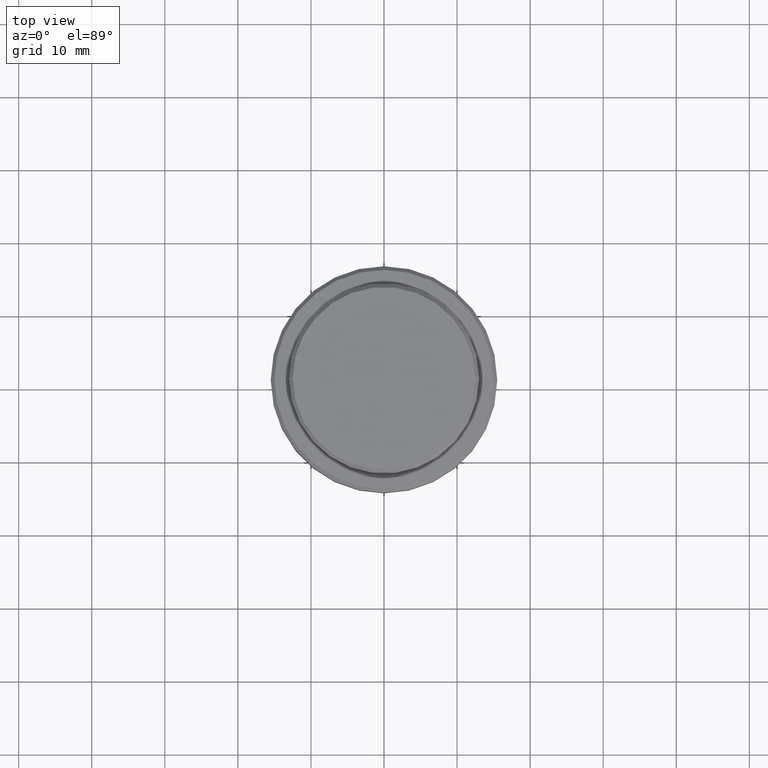
[diagram: clean part render]
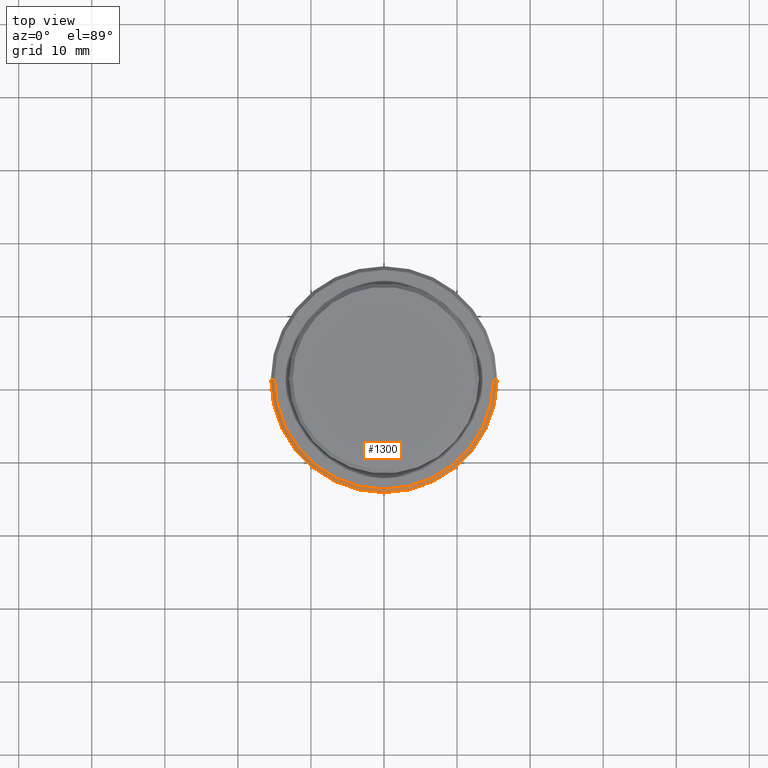
[diagram: same view with one face highlighted and labeled with its STEP entity id]
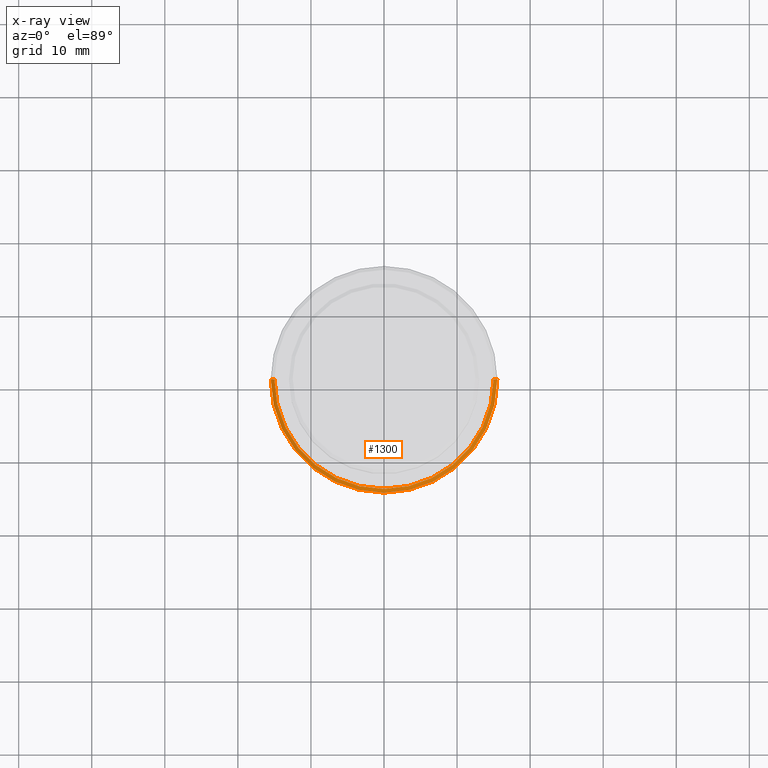
[diagram: x-ray of the same camera — body ghosted, the highlighted face saturated]
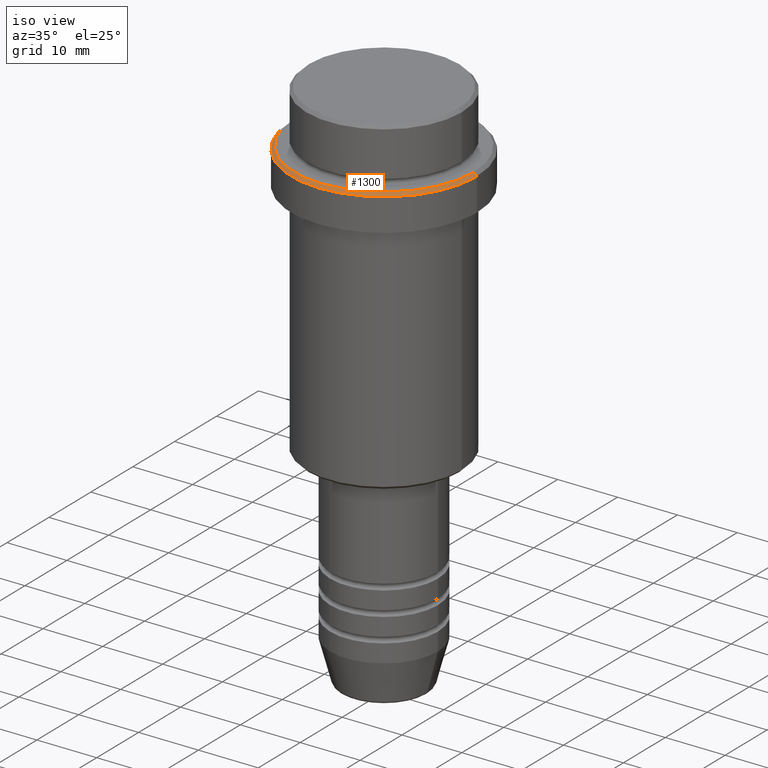
[diagram: same view with one face highlighted and labeled with its STEP entity id]
A machine part, top view. The second image highlights one B-rep face of the part: STEP entity #1300.
The next image is the same camera in x-ray: the body ghosted, the highlighted face saturated — about 0% of this face is hidden behind the body in this view.
A second angle (iso view) of the same face is appended — the face is thin or edge-on in the first view.
In plain terms, the highlighted conical surface has half-angle 45 deg.
Its self-contained STEP definition (entity closure, byte-faithful):
#76 = EDGE_CURVE ( 'NONE', #488, #563, #1321, .T. ) ;
#159 = LINE ( 'NONE', #588, #1234 ) ;
#161 = CIRCLE ( 'NONE', #1143, 15.50000000000000000 ) ;
#217 = ORIENTED_EDGE ( 'NONE', *, *, #985, .F. ) ;
#255 = CARTESIAN_POINT ( 'NONE',  ( -15.50000000000000000, 1.898202538678397557E-15, -9.500000000000012434 ) ) ;
#313 = DIRECTION ( 'NONE',  ( 1.000000000000000000, 0.000000000000000000, 0.000000000000000000 ) ) ;
#318 = AXIS2_PLACEMENT_3D ( 'NONE', #972, #1407, #313 ) ;
#357 = VERTEX_POINT ( 'NONE', #255 ) ;
#359 = DIRECTION ( 'NONE',  ( 0.000000000000000000, 0.000000000000000000, -1.000000000000000000 ) ) ;
#370 = DIRECTION ( 'NONE',  ( 0.7071067811865487940, 8.659560562354950115E-17, -0.7071067811865463515 ) ) ;
#376 = FACE_OUTER_BOUND ( 'NONE', #700, .T. ) ;
#436 = VECTOR ( 'NONE', #1230, 1000.000000000000000 ) ;
#452 = LINE ( 'NONE', #579, #436 ) ;
#461 = DIRECTION ( 'NONE',  ( -1.000000000000000000, 0.000000000000000000, 0.000000000000000000 ) ) ;
#488 = VERTEX_POINT ( 'NONE', #1060 ) ;
#563 = VERTEX_POINT ( 'NONE', #1213 ) ;
#579 = CARTESIAN_POINT ( 'NONE',  ( -14.99999999999998579, 0.000000000000000000, -9.000000000000000000 ) ) ;
#588 = CARTESIAN_POINT ( 'NONE',  ( 14.99999999999998579, 1.836970198721028011E-15, -9.000000000000000000 ) ) ;
#625 = DIRECTION ( 'NONE',  ( 1.000000000000000000, 0.000000000000000000, 0.000000000000000000 ) ) ;
#687 = VERTEX_POINT ( 'NONE', #918 ) ;
#689 = AXIS2_PLACEMENT_3D ( 'NONE', #1220, #359, #461 ) ;
#700 = EDGE_LOOP ( 'NONE', ( #818, #1291, #978, #217 ) ) ;
#745 = EDGE_CURVE ( 'NONE', #563, #687, #159, .T. ) ;
#818 = ORIENTED_EDGE ( 'NONE', *, *, #745, .F. ) ;
#918 = CARTESIAN_POINT ( 'NONE',  ( 15.50000000000000000, 0.000000000000000000, -9.500000000000012434 ) ) ;
#938 = CARTESIAN_POINT ( 'NONE',  ( 0.000000000000000000, 0.000000000000000000, -9.500000000000012434 ) ) ;
#972 = CARTESIAN_POINT ( 'NONE',  ( 0.000000000000000000, 0.000000000000000000, -9.000000000000000000 ) ) ;
#978 = ORIENTED_EDGE ( 'NONE', *, *, #1248, .T. ) ;
#985 = EDGE_CURVE ( 'NONE', #687, #357, #161, .T. ) ;
#1060 = CARTESIAN_POINT ( 'NONE',  ( -14.99999999999998579, 0.000000000000000000, -9.000000000000000000 ) ) ;
#1124 = CONICAL_SURFACE ( 'NONE', #689, 14.99999999999998579, 0.7853981633974500554 ) ;
#1143 = AXIS2_PLACEMENT_3D ( 'NONE', #938, #1375, #625 ) ;
#1213 = CARTESIAN_POINT ( 'NONE',  ( 14.99999999999998579, 1.867586368699712587E-15, -9.000000000000000000 ) ) ;
#1220 = CARTESIAN_POINT ( 'NONE',  ( 0.000000000000000000, 0.000000000000000000, -9.000000000000000000 ) ) ;
#1230 = DIRECTION ( 'NONE',  ( -0.7071067811865487940, 0.000000000000000000, -0.7071067811865463515 ) ) ;
#1234 = VECTOR ( 'NONE', #370, 1000.000000000000000 ) ;
#1248 = EDGE_CURVE ( 'NONE', #488, #357, #452, .T. ) ;
#1291 = ORIENTED_EDGE ( 'NONE', *, *, #76, .F. ) ;
#1300 = ADVANCED_FACE ( 'NONE', ( #376 ), #1124, .T. ) ;
#1321 = CIRCLE ( 'NONE', #318, 14.99999999999998579 ) ;
#1375 = DIRECTION ( 'NONE',  ( 0.000000000000000000, 0.000000000000000000, -1.000000000000000000 ) ) ;
#1407 = DIRECTION ( 'NONE',  ( -0.000000000000000000, -0.000000000000000000, 1.000000000000000000 ) ) ;